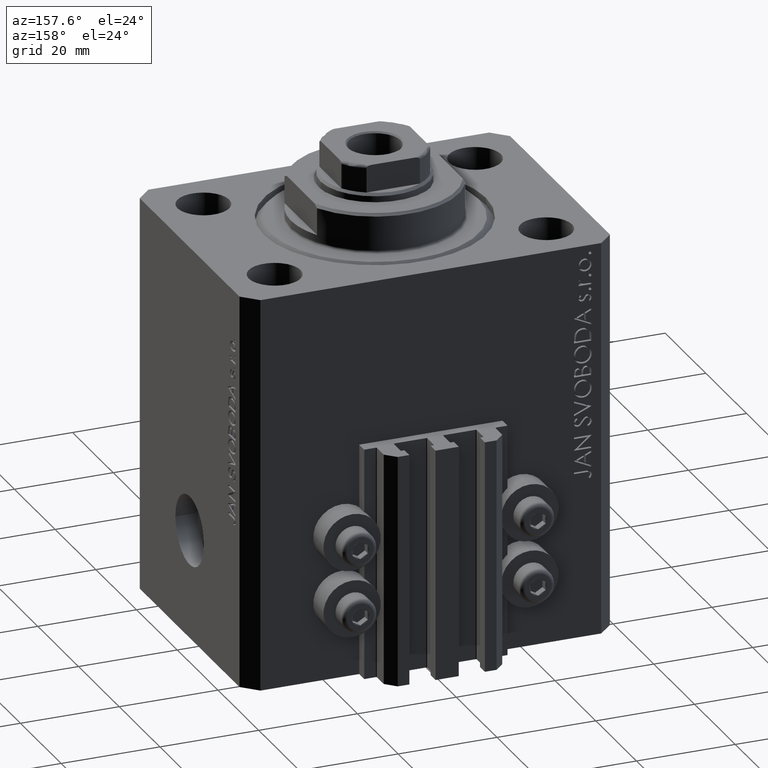
[diagram: clean part render]
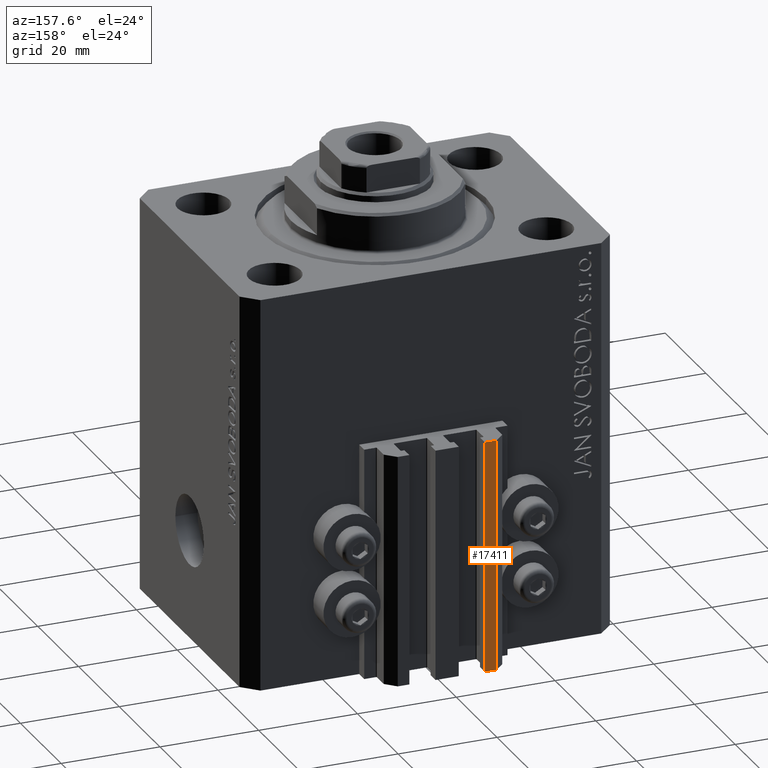
[diagram: same view with one face highlighted and labeled with its STEP entity id]
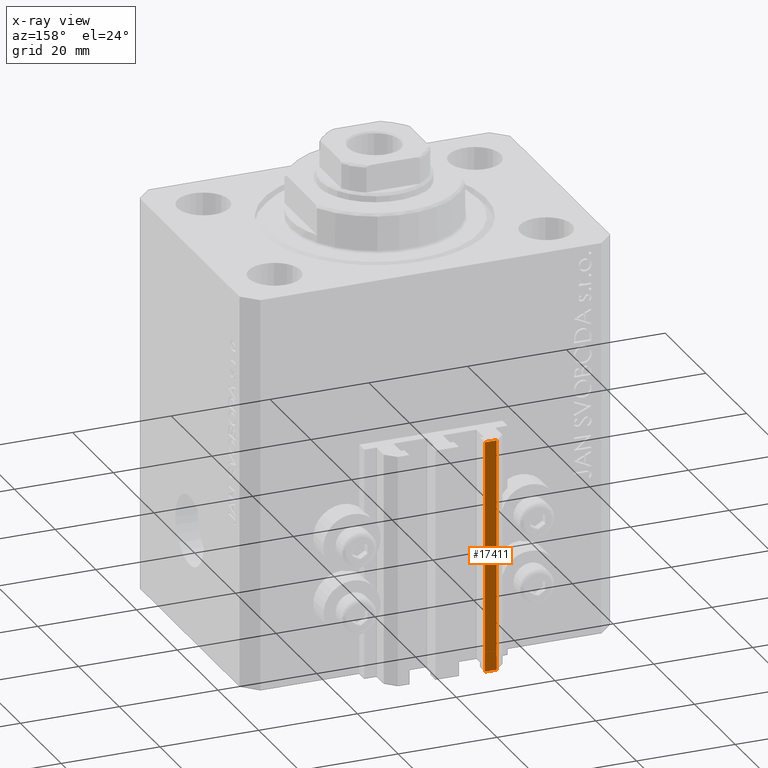
[diagram: x-ray of the same camera — body ghosted, the highlighted face saturated]
A machine part, auxiliary view. The second image highlights one B-rep face of the part: STEP entity #17411.
The next image is the same camera in x-ray: the body ghosted, the highlighted face saturated — about 0% of this face is hidden behind the body in this view.
In plain terms, the highlighted planar face has unit normal (0, 1, 0).
Its self-contained STEP definition (entity closure, byte-faithful):
#2139 = DIRECTION ( 'NONE',  ( 0.000000000000000000, 1.000000000000000000, -0.000000000000000000 ) ) ;
#3052 = VERTEX_POINT ( 'NONE', #14300 ) ;
#3441 = DIRECTION ( 'NONE',  ( 0.000000000000000000, 0.000000000000000000, 1.000000000000000000 ) ) ;
#3805 = DIRECTION ( 'NONE',  ( -1.000000000000000000, 0.000000000000000000, 0.000000000000000000 ) ) ;
#4299 = EDGE_CURVE ( 'NONE', #15785, #3052, #35617, .T. ) ;
#8851 = CARTESIAN_POINT ( 'NONE',  ( -7.650000000000000355, 35.50000000000000000, -80.00000000000000000 ) ) ;
#9810 = PLANE ( 'NONE',  #42068 ) ;
#12523 = EDGE_CURVE ( 'NONE', #38720, #3052, #34233, .T. ) ;
#12937 = ORIENTED_EDGE ( 'NONE', *, *, #4299, .T. ) ;
#13183 = EDGE_LOOP ( 'NONE', ( #21145, #42578, #42846, #12937 ) ) ;
#14300 = CARTESIAN_POINT ( 'NONE',  ( -10.00000000000000000, 35.50000000000000000, -33.00000000000000000 ) ) ;
#14764 = LINE ( 'NONE', #19521, #42922 ) ;
#15785 = VERTEX_POINT ( 'NONE', #26622 ) ;
#15993 = CARTESIAN_POINT ( 'NONE',  ( -7.650000000000000355, 35.50000000000000000, -33.00000000000000000 ) ) ;
#17411 = ADVANCED_FACE ( 'NONE', ( #34562 ), #9810, .T. ) ;
#19057 = DIRECTION ( 'NONE',  ( 0.000000000000000000, 0.000000000000000000, 1.000000000000000000 ) ) ;
#19521 = CARTESIAN_POINT ( 'NONE',  ( -7.650000000000000355, 35.50000000000000000, -80.00000000000000000 ) ) ;
#20712 = EDGE_CURVE ( 'NONE', #40559, #38720, #14764, .T. ) ;
#21145 = ORIENTED_EDGE ( 'NONE', *, *, #12523, .F. ) ;
#22422 = VECTOR ( 'NONE', #3805, 1000.000000000000000 ) ;
#24812 = CARTESIAN_POINT ( 'NONE',  ( -10.00000000000000000, 35.50000000000000000, -80.00000000000000000 ) ) ;
#25428 = CARTESIAN_POINT ( 'NONE',  ( -7.650000000000000355, 35.50000000000000000, -80.00000000000000000 ) ) ;
#26312 = EDGE_CURVE ( 'NONE', #40559, #15785, #40538, .T. ) ;
#26622 = CARTESIAN_POINT ( 'NONE',  ( -10.00000000000000000, 35.50000000000000000, -80.00000000000000000 ) ) ;
#29145 = VECTOR ( 'NONE', #3441, 1000.000000000000000 ) ;
#30619 = DIRECTION ( 'NONE',  ( -1.000000000000000000, 0.000000000000000000, 0.000000000000000000 ) ) ;
#34233 = LINE ( 'NONE', #15993, #37356 ) ;
#34562 = FACE_OUTER_BOUND ( 'NONE', #13183, .T. ) ;
#35617 = LINE ( 'NONE', #24812, #29145 ) ;
#36699 = CARTESIAN_POINT ( 'NONE',  ( -7.650000000000000355, 35.50000000000000000, -80.00000000000000000 ) ) ;
#37356 = VECTOR ( 'NONE', #30619, 1000.000000000000000 ) ;
#37582 = CARTESIAN_POINT ( 'NONE',  ( -7.650000000000000355, 35.50000000000000000, -33.00000000000000000 ) ) ;
#38720 = VERTEX_POINT ( 'NONE', #37582 ) ;
#40538 = LINE ( 'NONE', #36699, #22422 ) ;
#40559 = VERTEX_POINT ( 'NONE', #25428 ) ;
#42000 = DIRECTION ( 'NONE',  ( 0.000000000000000000, 0.000000000000000000, 1.000000000000000000 ) ) ;
#42068 = AXIS2_PLACEMENT_3D ( 'NONE', #8851, #2139, #42000 ) ;
#42578 = ORIENTED_EDGE ( 'NONE', *, *, #20712, .F. ) ;
#42846 = ORIENTED_EDGE ( 'NONE', *, *, #26312, .T. ) ;
#42922 = VECTOR ( 'NONE', #19057, 1000.000000000000000 ) ;